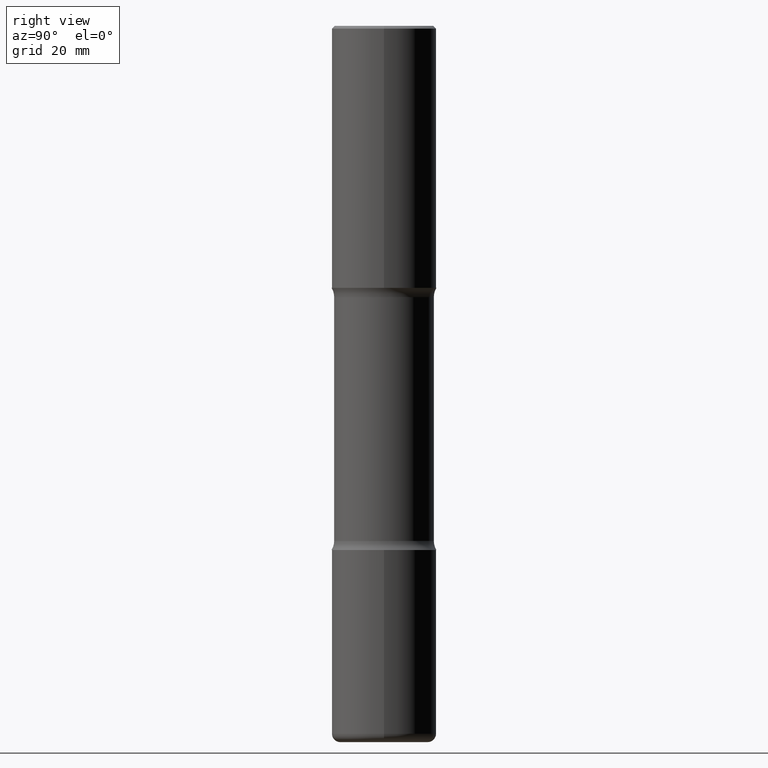
[diagram: clean part render]
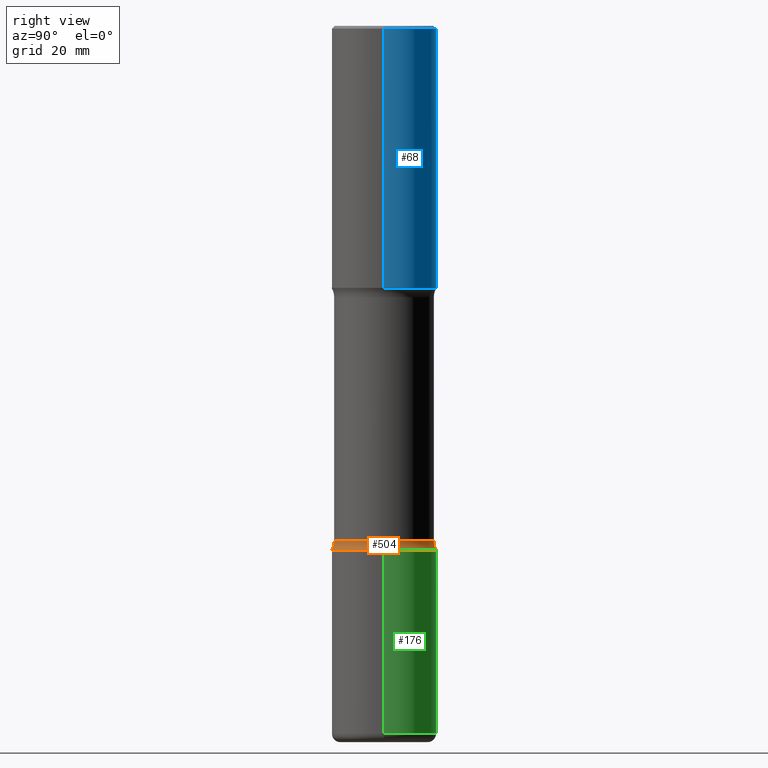
[diagram: same view with three faces highlighted in distinct colors, each labeled with its STEP entity id]
A machine part, right view with three faces highlighted in distinct colors.
Their STEP definitions:

[orange] entity #504 — the highlighted toroidal blend (fillet) surface has major radius 12.2301 mm and minor (blend) radius 3.175 mm.
#6 = ORIENTED_EDGE ( 'NONE', *, *, #471, .T. ) ;
#13 = TOROIDAL_SURFACE ( 'NONE', #340, 0.4814999999999999281, 0.1250000000000000000 ) ;
#43 = EDGE_CURVE ( 'NONE', #117, #286, #283, .T. ) ;
#67 = DIRECTION ( 'NONE',  ( 6.982962677686265922E-15, 1.000000000000000000, -2.913971193241879977E-15 ) ) ;
#102 = VERTEX_POINT ( 'NONE', #359 ) ;
#117 = VERTEX_POINT ( 'NONE', #188 ) ;
#125 = EDGE_CURVE ( 'NONE', #265, #286, #378, .T. ) ;
#128 = FACE_OUTER_BOUND ( 'NONE', #505, .T. ) ;
#147 = ORIENTED_EDGE ( 'NONE', *, *, #307, .F. ) ;
#184 = DIRECTION ( 'NONE',  ( -6.982962677686265133E-15, -1.000000000000000000, 0.000000000000000000 ) ) ;
#188 = CARTESIAN_POINT ( 'NONE',  ( 2.489426194595243160E-15, 0.3564999999999870495, -3.684557276951521576 ) ) ;
#233 = CARTESIAN_POINT ( 'NONE',  ( 9.007065127906209971E-29, -1.286943878087476446E-14, -3.684557276951520688 ) ) ;
#234 = ORIENTED_EDGE ( 'NONE', *, *, #43, .T. ) ;
#251 = AXIS2_PLACEMENT_3D ( 'NONE', #483, #396, #184 ) ;
#253 = AXIS2_PLACEMENT_3D ( 'NONE', #233, #399, #489 ) ;
#265 = VERTEX_POINT ( 'NONE', #467 ) ;
#283 = CIRCLE ( 'NONE', #253, 0.3564999999999998725 ) ;
#286 = VERTEX_POINT ( 'NONE', #297 ) ;
#295 = DIRECTION ( 'NONE',  ( 6.982962677686265922E-15, 1.000000000000000000, -3.416976393561393039E-15 ) ) ;
#297 = CARTESIAN_POINT ( 'NONE',  ( -2.509227142684845959E-15, -0.3565000000000126956, -3.684557276951519356 ) ) ;
#307 = EDGE_CURVE ( 'NONE', #102, #265, #556, .T. ) ;
#309 = CIRCLE ( 'NONE', #251, 0.1250000000000000278 ) ;
#323 = AXIS2_PLACEMENT_3D ( 'NONE', #542, #548, #67 ) ;
#335 = CARTESIAN_POINT ( 'NONE',  ( 9.010469885387392836E-29, -1.286456297437495039E-14, -3.684557276951520688 ) ) ;
#340 = AXIS2_PLACEMENT_3D ( 'NONE', #335, #549, #295 ) ;
#359 = CARTESIAN_POINT ( 'NONE',  ( 2.618611004132441919E-15, 0.3749999999999870104, -3.750000000000001332 ) ) ;
#362 = CARTESIAN_POINT ( 'NONE',  ( -3.303329785926900930E-15, -0.4815000000000127511, -3.684557276951518912 ) ) ;
#378 = CIRCLE ( 'NONE', #514, 0.1250000000000000278 ) ;
#396 = DIRECTION ( 'NONE',  ( -1.000000000000000000, 6.982962677686265922E-15, -4.883557194083112340E-29 ) ) ;
#399 = DIRECTION ( 'NONE',  ( 2.497495331405690228E-29, -3.416976393561393039E-15, -1.000000000000000000 ) ) ;
#467 = CARTESIAN_POINT ( 'NONE',  ( -2.572686749164232434E-15, -0.3750000000000131561, -3.749999999999999112 ) ) ;
#471 = EDGE_CURVE ( 'NONE', #102, #117, #309, .T. ) ;
#483 = CARTESIAN_POINT ( 'NONE',  ( 3.362296529306026499E-15, 0.4814999999999870495, -3.684557276951522020 ) ) ;
#489 = DIRECTION ( 'NONE',  ( 6.982962677686265922E-15, 1.000000000000000000, -3.065187089665373633E-15 ) ) ;
#490 = ORIENTED_EDGE ( 'NONE', *, *, #125, .F. ) ;
#504 = ADVANCED_FACE ( 'NONE', ( #128 ), #13, .F. ) ;
#505 = EDGE_LOOP ( 'NONE', ( #490, #147, #6, #234 ) ) ;
#514 = AXIS2_PLACEMENT_3D ( 'NONE', #362, #532, #518 ) ;
#518 = DIRECTION ( 'NONE',  ( 6.860497997771528407E-15, 1.000000000000000000, 0.000000000000000000 ) ) ;
#532 = DIRECTION ( 'NONE',  ( 1.000000000000000000, -6.860497997771530774E-15, 4.841711302051742582E-29 ) ) ;
#542 = CARTESIAN_POINT ( 'NONE',  ( 9.170508023194262238E-29, -1.309305502066179741E-14, -3.750000000000000000 ) ) ;
#548 = DIRECTION ( 'NONE',  ( 2.497495331405690228E-29, -3.416976393561393039E-15, -1.000000000000000000 ) ) ;
#549 = DIRECTION ( 'NONE',  ( 2.497495331405690228E-29, -3.416976393561393039E-15, -1.000000000000000000 ) ) ;
#556 = CIRCLE ( 'NONE', #323, 0.3750000000000001110 ) ;

[blue] entity #68 — the highlighted cylindrical surface (partial cylindrical patch) has radius 9.525 mm, axis along (-0, 0, 1).
#15 = EDGE_CURVE ( 'NONE', #462, #111, #440, .T. ) ;
#20 = ORIENTED_EDGE ( 'NONE', *, *, #30, .T. ) ;
#29 = AXIS2_PLACEMENT_3D ( 'NONE', #310, #410, #57 ) ;
#30 = EDGE_CURVE ( 'NONE', #224, #230, #38, .T. ) ;
#38 = LINE ( 'NONE', #214, #80 ) ;
#44 = DIRECTION ( 'NONE',  ( -2.445468806185136597E-29, 3.491481338843145583E-15, 1.000000000000000000 ) ) ;
#53 = FACE_OUTER_BOUND ( 'NONE', #497, .T. ) ;
#57 = DIRECTION ( 'NONE',  ( 1.000000000000000000, -6.982962677686265922E-15, 4.876176775795935793E-29 ) ) ;
#68 = ADVANCED_FACE ( 'NONE', ( #53 ), #143, .T. ) ;
#80 = VECTOR ( 'NONE', #346, 39.37007874015748143 ) ;
#86 = CIRCLE ( 'NONE', #308, 0.3750000000000004441 ) ;
#106 = EDGE_CURVE ( 'NONE', #462, #224, #86, .T. ) ;
#111 = VERTEX_POINT ( 'NONE', #313 ) ;
#143 = CYLINDRICAL_SURFACE ( 'NONE', #29, 0.3750000000000003886 ) ;
#145 = VECTOR ( 'NONE', #389, 39.37007874015748143 ) ;
#192 = AXIS2_PLACEMENT_3D ( 'NONE', #441, #44, #437 ) ;
#214 = CARTESIAN_POINT ( 'NONE',  ( -0.3750000000000003886, 2.664535259100378458E-15, -1.844600658845591560E-29 ) ) ;
#216 = CARTESIAN_POINT ( 'NONE',  ( 0.3750000000000004441, -9.165138514463253457E-15, -1.875000000000000666 ) ) ;
#224 = VERTEX_POINT ( 'NONE', #463 ) ;
#230 = VERTEX_POINT ( 'NONE', #252 ) ;
#236 = ORIENTED_EDGE ( 'NONE', *, *, #15, .F. ) ;
#252 = CARTESIAN_POINT ( 'NONE',  ( -0.3750000000000002220, 2.548781377355488296E-15, -0.02000000000000013572 ) ) ;
#277 = CARTESIAN_POINT ( 'NONE',  ( 4.585254011597132801E-29, -6.546527510330900285E-15, -1.875000000000000666 ) ) ;
#300 = CIRCLE ( 'NONE', #192, 0.3750000000000002220 ) ;
#308 = AXIS2_PLACEMENT_3D ( 'NONE', #277, #354, #524 ) ;
#310 = CARTESIAN_POINT ( 'NONE',  ( 0.000000000000000000, 0.000000000000000000, 0.000000000000000000 ) ) ;
#313 = CARTESIAN_POINT ( 'NONE',  ( 0.3750000000000002220, -2.642516375941189606E-15, -0.02000000000000013572 ) ) ;
#334 = ORIENTED_EDGE ( 'NONE', *, *, #400, .F. ) ;
#343 = CARTESIAN_POINT ( 'NONE',  ( 0.3750000000000003886, -2.618611004132352383E-15, 1.828566290923477884E-29 ) ) ;
#346 = DIRECTION ( 'NONE',  ( -2.445468806185136877E-29, 3.491481338843145188E-15, 1.000000000000000000 ) ) ;
#354 = DIRECTION ( 'NONE',  ( -2.445468806185136597E-29, 3.491481338843145583E-15, 1.000000000000000000 ) ) ;
#389 = DIRECTION ( 'NONE',  ( -2.445468806185136877E-29, 3.491481338843145188E-15, 1.000000000000000000 ) ) ;
#400 = EDGE_CURVE ( 'NONE', #111, #230, #300, .T. ) ;
#410 = DIRECTION ( 'NONE',  ( -2.445468806185136597E-29, 3.491481338843145583E-15, 1.000000000000000000 ) ) ;
#437 = DIRECTION ( 'NONE',  ( 1.000000000000000000, -6.982962677686266711E-15, 0.000000000000000000 ) ) ;
#440 = LINE ( 'NONE', #343, #145 ) ;
#441 = CARTESIAN_POINT ( 'NONE',  ( 4.890937612370306439E-31, -6.982962677686338448E-17, -0.02000000000000013572 ) ) ;
#462 = VERTEX_POINT ( 'NONE', #216 ) ;
#463 = CARTESIAN_POINT ( 'NONE',  ( -0.3750000000000004441, -6.436433094535026432E-16, -1.875000000000000666 ) ) ;
#497 = EDGE_LOOP ( 'NONE', ( #528, #20, #334, #236 ) ) ;
#524 = DIRECTION ( 'NONE',  ( 1.000000000000000000, -6.982962677686265133E-15, 0.000000000000000000 ) ) ;
#528 = ORIENTED_EDGE ( 'NONE', *, *, #106, .T. ) ;

[green] entity #176 — the highlighted cylindrical surface (partial cylindrical patch) has radius 9.525 mm, axis along (-0, 0, 1).
#49 = CYLINDRICAL_SURFACE ( 'NONE', #294, 0.3750000000000002220 ) ;
#52 = AXIS2_PLACEMENT_3D ( 'NONE', #208, #388, #79 ) ;
#55 = VERTEX_POINT ( 'NONE', #91 ) ;
#60 = EDGE_CURVE ( 'NONE', #248, #444, #139, .T. ) ;
#76 = LINE ( 'NONE', #381, #226 ) ;
#79 = DIRECTION ( 'NONE',  ( 1.000000000000000000, -6.982962677686265922E-15, 0.000000000000000000 ) ) ;
#88 = CIRCLE ( 'NONE', #418, 0.3750000000000004441 ) ;
#91 = CARTESIAN_POINT ( 'NONE',  ( 0.3750000000000001110, -2.030296398537288325E-14, -5.064999999999999503 ) ) ;
#103 = CARTESIAN_POINT ( 'NONE',  ( 0.000000000000000000, 0.000000000000000000, 0.000000000000000000 ) ) ;
#118 = CARTESIAN_POINT ( 'NONE',  ( 1.238629950332771579E-28, -1.768435298124053008E-14, -5.064999999999999503 ) ) ;
#119 = DIRECTION ( 'NONE',  ( 1.000000000000000000, -6.982962677686266711E-15, 4.876176775795935793E-29 ) ) ;
#139 = LINE ( 'NONE', #148, #202 ) ;
#148 = CARTESIAN_POINT ( 'NONE',  ( -0.3750000000000002220, 2.664535259100377275E-15, -1.844600658845590719E-29 ) ) ;
#167 = DIRECTION ( 'NONE',  ( -2.445468806185136597E-29, 3.491481338843145583E-15, 1.000000000000000000 ) ) ;
#176 = ADVANCED_FACE ( 'NONE', ( #451 ), #49, .T. ) ;
#178 = VERTEX_POINT ( 'NONE', #195 ) ;
#195 = CARTESIAN_POINT ( 'NONE',  ( 0.3750000000000001110, -1.571166602479414743E-14, -3.750000000000000000 ) ) ;
#202 = VECTOR ( 'NONE', #222, 39.37007874015748143 ) ;
#206 = DIRECTION ( 'NONE',  ( 1.000000000000000000, -6.982962677686265133E-15, 0.000000000000000000 ) ) ;
#208 = CARTESIAN_POINT ( 'NONE',  ( 9.170508023194262238E-29, -1.309305502066179741E-14, -3.750000000000000000 ) ) ;
#217 = CARTESIAN_POINT ( 'NONE',  ( -0.3750000000000001110, -1.272416874185078647E-14, -3.750000000000000000 ) ) ;
#222 = DIRECTION ( 'NONE',  ( -2.445468806185136877E-29, 3.491481338843145188E-15, 1.000000000000000000 ) ) ;
#226 = VECTOR ( 'NONE', #546, 39.37007874015748143 ) ;
#231 = ORIENTED_EDGE ( 'NONE', *, *, #507, .T. ) ;
#248 = VERTEX_POINT ( 'NONE', #369 ) ;
#294 = AXIS2_PLACEMENT_3D ( 'NONE', #103, #551, #119 ) ;
#322 = ORIENTED_EDGE ( 'NONE', *, *, #60, .T. ) ;
#336 = EDGE_CURVE ( 'NONE', #178, #444, #508, .T. ) ;
#369 = CARTESIAN_POINT ( 'NONE',  ( -0.3750000000000001110, -1.501981772214015439E-14, -5.064999999999999503 ) ) ;
#381 = CARTESIAN_POINT ( 'NONE',  ( 0.3750000000000002220, -2.618611004132351594E-15, 1.828566290923477043E-29 ) ) ;
#388 = DIRECTION ( 'NONE',  ( -2.445468806185136597E-29, 3.491481338843145583E-15, 1.000000000000000000 ) ) ;
#418 = AXIS2_PLACEMENT_3D ( 'NONE', #118, #167, #206 ) ;
#422 = EDGE_LOOP ( 'NONE', ( #231, #322, #525, #480 ) ) ;
#444 = VERTEX_POINT ( 'NONE', #217 ) ;
#451 = FACE_OUTER_BOUND ( 'NONE', #422, .T. ) ;
#480 = ORIENTED_EDGE ( 'NONE', *, *, #550, .F. ) ;
#507 = EDGE_CURVE ( 'NONE', #55, #248, #88, .T. ) ;
#508 = CIRCLE ( 'NONE', #52, 0.3750000000000001110 ) ;
#525 = ORIENTED_EDGE ( 'NONE', *, *, #336, .F. ) ;
#546 = DIRECTION ( 'NONE',  ( -2.445468806185136877E-29, 3.491481338843145188E-15, 1.000000000000000000 ) ) ;
#550 = EDGE_CURVE ( 'NONE', #55, #178, #76, .T. ) ;
#551 = DIRECTION ( 'NONE',  ( -2.445468806185136597E-29, 3.491481338843145583E-15, 1.000000000000000000 ) ) ;